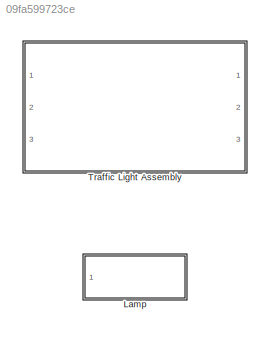
MODEL slx_09fa599723ce
KIND library
CONFIG AbsTol = auto
CONFIG EnableMultiTasking = on
CONFIG FixedStep = auto
CONFIG MaxStep = auto
CONFIG MinStep = auto
CONFIG RelTol = 1e-3
CONFIG SampleTimeConstraint = Unconstrained
CONFIG Solver = ode45
CONFIG SolverName = ode45
CONFIG StartTime = 0.0
CONFIG StopTime = 10.0
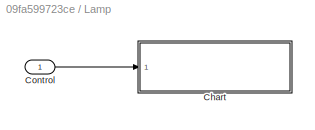
BLOCK [SubSystem]  Lamp
  Ports = [1]
  RequestExecContextInheritance = off
  Variant = off
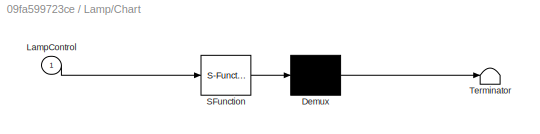
BLOCK [SubSystem]  Lamp/Chart
  ErrorFcn = Stateflow.Translate.translate
  PermitHierarchicalResolution = ExplicitOnly
  Ports = [1]
  RequestExecContextInheritance = off
  SFBlockType = Chart
  TreatAsAtomicUnit = on
  Variant = off
BLOCK [Demux]  Lamp/Chart/ Demux 
  Outputs = 1
  Ports = [1, 1]
BLOCK [S-Function]  Lamp/Chart/ SFunction 
  EnableBusSupport = off
  FunctionName = sf_sfun
  Parameters = LampSelect
  PortCounts = [1 1]
  Ports = [1, 1]
  SFcnIsStateOwnerBlock = off
  SFunctionDeploymentMode = off
  Tag = Stateflow S-Function sf_msg_traffic_light_lib 3
BLOCK [Terminator]  Lamp/Chart/ Terminator 
BLOCK [Inport]  Lamp/Chart/LampControl
  IconDisplay = Port number
BLOCK [Inport]  Lamp/Control
  IconDisplay = Port number
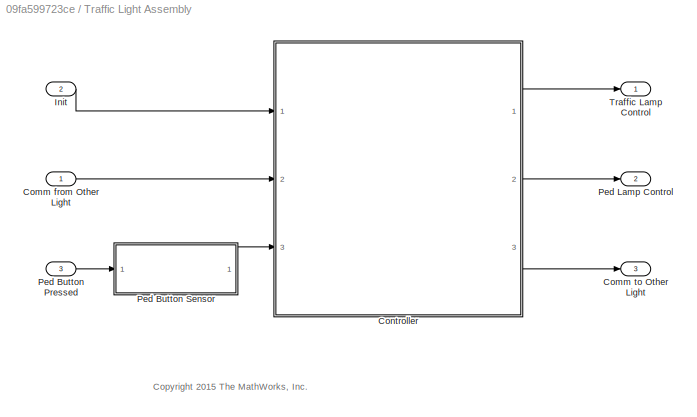
BLOCK [SubSystem] Traffic Light Assembly
  Ports = [3, 3]
  RTWSystemCode = Reusable function
  RequestExecContextInheritance = off
  Variant = off
BLOCK [Inport] Traffic Light Assembly/Comm from Other Light
  IconDisplay = Port number
BLOCK [Outport] Traffic Light Assembly/Comm to Other Light
  IconDisplay = Port number
  Port = 3
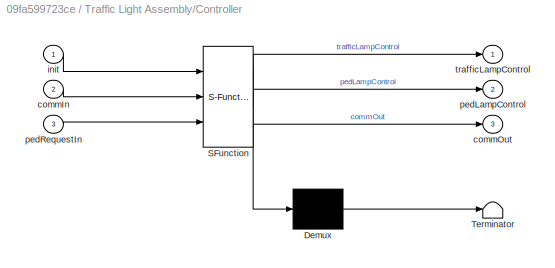
BLOCK [SubSystem] Traffic Light Assembly/Controller
  ErrorFcn = Stateflow.Translate.translate
  PermitHierarchicalResolution = ExplicitOnly
  Ports = [3, 3]
  RTWSystemCode = Reusable function
  RequestExecContextInheritance = off
  SFBlockType = Chart
  TreatAsAtomicUnit = on
  Variant = off
BLOCK [Demux] Traffic Light Assembly/Controller/ Demux 
  Outputs = 1
  Ports = [1, 1]
BLOCK [S-Function] Traffic Light Assembly/Controller/ SFunction 
  EnableBusSupport = off
  FunctionName = sf_sfun
  PortCounts = [3 4]
  Ports = [3, 4]
  SFcnIsStateOwnerBlock = off
  SFunctionDeploymentMode = off
  Tag = Stateflow S-Function sf_msg_traffic_light_lib 2
BLOCK [Terminator] Traffic Light Assembly/Controller/ Terminator 
BLOCK [Inport] Traffic Light Assembly/Controller/commIn
  IconDisplay = Port number
  Port = 2
BLOCK [Outport] Traffic Light Assembly/Controller/commOut
  IconDisplay = Port number
  Port = 3
BLOCK [Inport] Traffic Light Assembly/Controller/init
  IconDisplay = Port number
BLOCK [Outport] Traffic Light Assembly/Controller/pedLampControl
  IconDisplay = Port number
  Port = 2
BLOCK [Inport] Traffic Light Assembly/Controller/pedRequestIn
  IconDisplay = Port number
  Port = 3
BLOCK [Outport] Traffic Light Assembly/Controller/trafficLampControl
  IconDisplay = Port number
BLOCK [Inport] Traffic Light Assembly/Init
  IconDisplay = Port number
  Port = 2
BLOCK [Inport] Traffic Light Assembly/Ped Button Pressed
  IconDisplay = Port number
  Port = 3
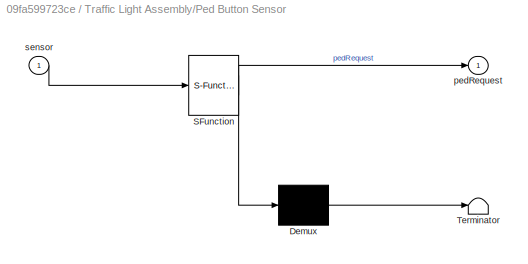
BLOCK [SubSystem] Traffic Light Assembly/Ped Button Sensor
  ErrorFcn = Stateflow.Translate.translate
  PermitHierarchicalResolution = ExplicitOnly
  Ports = [1, 1]
  RTWSystemCode = Inline
  RequestExecContextInheritance = off
  SFBlockType = Chart
  TreatAsAtomicUnit = on
  Variant = off
BLOCK [Demux] Traffic Light Assembly/Ped Button Sensor/ Demux 
  Outputs = 1
  Ports = [1, 1]
BLOCK [S-Function] Traffic Light Assembly/Ped Button Sensor/ SFunction 
  EnableBusSupport = off
  FunctionName = sf_sfun
  PortCounts = [1 2]
  Ports = [1, 2]
  SFcnIsStateOwnerBlock = off
  SFunctionDeploymentMode = off
  Tag = Stateflow S-Function sf_msg_traffic_light_lib 18
BLOCK [Terminator] Traffic Light Assembly/Ped Button Sensor/ Terminator 
BLOCK [Outport] Traffic Light Assembly/Ped Button Sensor/pedRequest
  IconDisplay = Port number
BLOCK [Inport] Traffic Light Assembly/Ped Button Sensor/sensor
  IconDisplay = Port number
BLOCK [Outport] Traffic Light Assembly/Ped Lamp Control
  IconDisplay = Port number
  Port = 2
BLOCK [Outport] Traffic Light Assembly/Traffic Lamp Control
  IconDisplay = Port number
ANNOTATION Traffic Light Assembly: <copyright redacted>
LINE  Lamp/Control:1 ->  Lamp/Chart:1
LINE Traffic Light Assembly/Comm from Other Light:1 -> Traffic Light Assembly/Controller:2
LINE Traffic Light Assembly/Controller:1 -> Traffic Light Assembly/Traffic Lamp Control:1
LINE Traffic Light Assembly/Controller:2 -> Traffic Light Assembly/Ped Lamp Control:1
LINE Traffic Light Assembly/Controller:3 -> Traffic Light Assembly/Comm to Other Light:1
LINE Traffic Light Assembly/Init:1 -> Traffic Light Assembly/Controller:1
LINE Traffic Light Assembly/Ped Button Pressed:1 -> Traffic Light Assembly/Ped Button Sensor:1
LINE Traffic Light Assembly/Ped Button Sensor:1 -> Traffic Light Assembly/Controller:3
CHART Traffic Light Assembly/Controller states=6 transitions=16
  STATE_LABEL 'PedCrossing\nen:\npedLampControl.data = GREEN;\nsend(pedLampControl);\n'
  STATE_LABEL 'NormalCycle'
  STATE_LABEL 'Stop\nen:\ncommOut.data = STOPPED;\nsend(commOut);\non pedRequestIn:\nforward(pedRequestIn,commOut);'
  STATE_LABEL 'PrepareToGo\nen:\ncommOut.data = REQ_STOP;\nsend(commOut);\n'
  STATE_LABEL 'PrepareToStop'
  STATE_LABEL 'Go'
  STATE_LABEL '[init == 0]'
  STATE_LABEL 'after(3,sec)'
  STATE_LABEL 'after(1,sec)\n{\ntrafficLampControl.data = RED;\nsend(trafficLampControl);\n}'
  STATE_LABEL 'commIn\n[commIn.data == STOPPED]'
  STATE_LABEL '[commIn.data == REQ_STOP]\n{\ntrafficLampControl.data = YELLOW;\nsend(trafficLampControl);\n}'
  STATE_LABEL '{\ntrafficLampControl.data = GREEN;\nsend(trafficLampControl);\n}'
  STATE_LABEL 'commIn'
  STATE_LABEL '[commIn.data == REQ_PED]\n/{forward(commIn,pedRequestLocal);}'
  STATE_LABEL 'H'
  STATE_LABEL 'Stop\nen:\ncommOut.data = STOPPED;\nsend(commOut);\non pedRequestIn:\nforward(pedRequestIn,commOut);'
  STATE_LABEL 'PrepareToGo\nen:\ncommOut.data = REQ_STOP;\nsend(commOut);\n'
  STATE_LABEL 'PrepareToStop'
  STATE_LABEL 'Go'
CHART  Lamp/Chart states=3 transitions=3
  STATE_LABEL 'Wait'
  STATE_LABEL 'Set\nen:\nchangeLamp(LampControl.data);'
  STATE_LABEL 'changeLamp(next)'
  STATE_LABEL "SCRIPT:\nfunction changeLamp(next)\n    coder.extrinsic('tl_gui');\n    switch LampSelect\n        case 3 % 'Ped Lamp 1'\n            tl_gui('onp',1,next);\n        case 4 % 'Ped Lamp 2'\n            tl_gui('onp',2,next);\n        case 1 % 'Traffic Lamp 1'\n            tl_gui('ont',1,next);\n        case 2 % 'Traffic Lamp 2'\n            tl_gui('ont',2,next);\n    end\nend\n \n"
CHART Traffic Light Assembly/Ped Button Sensor states=1 transitions=2
  STATE_LABEL 'sensing\n'
